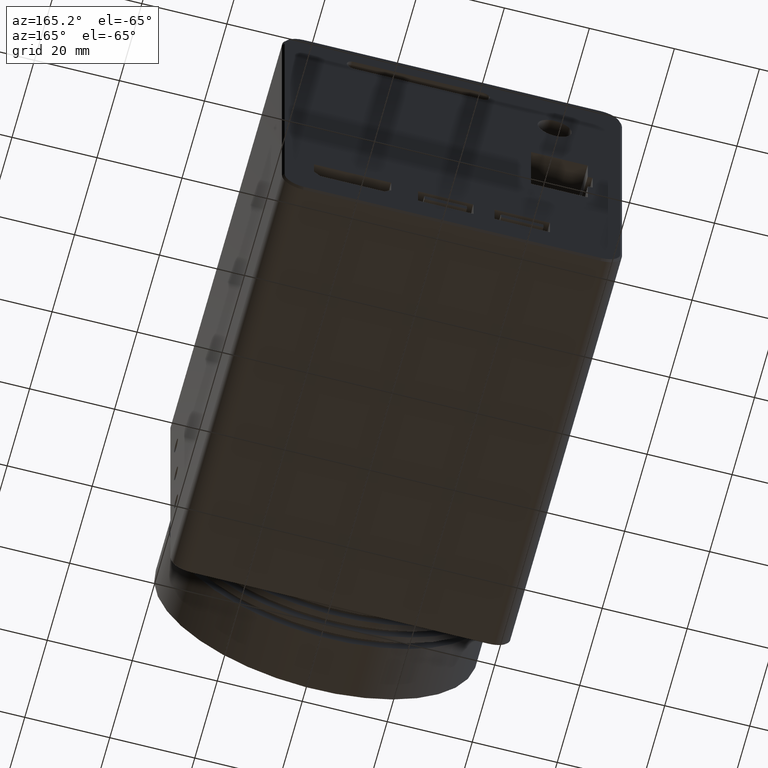
[diagram: clean part render]
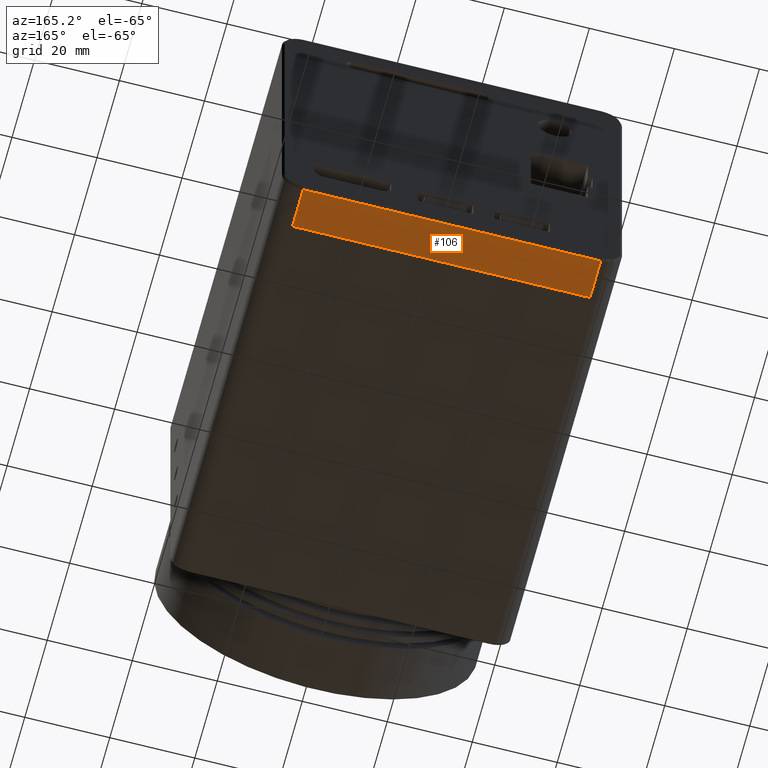
[diagram: same view with one face highlighted and labeled with its STEP entity id]
A machine part, auxiliary view. The second image highlights one B-rep face of the part: STEP entity #106.
In plain terms, the highlighted planar face has unit normal (0, -0, 1).
Its self-contained STEP definition (entity closure, byte-faithful):
#2 = DIRECTION ( 'NONE',  ( 1.000000000000000000, 0.000000000000000000, -0.000000000000000000 ) ) ;
#6 = LINE ( 'NONE', #1852, #449 ) ;
#106 = ADVANCED_FACE ( 'NONE', ( #3049 ), #2106, .F. ) ;
#180 = VERTEX_POINT ( 'NONE', #606 ) ;
#237 = LINE ( 'NONE', #3105, #2905 ) ;
#277 = VECTOR ( 'NONE', #2888, 1000.000000000000000 ) ;
#292 = EDGE_CURVE ( 'NONE', #3232, #180, #857, .T. ) ;
#378 = ORIENTED_EDGE ( 'NONE', *, *, #3316, .F. ) ;
#421 = DIRECTION ( 'NONE',  ( 0.000000000000000000, -0.000000000000000000, 1.000000000000000000 ) ) ;
#449 = VECTOR ( 'NONE', #1350, 1000.000000000000000 ) ;
#576 = CARTESIAN_POINT ( 'NONE',  ( 52.30124153498868367, 53.60462753950339021, -40.00000000000000000 ) ) ;
#606 = CARTESIAN_POINT ( 'NONE',  ( 52.30124153498868367, 63.10462753950338310, -40.00000000000000000 ) ) ;
#857 = LINE ( 'NONE', #1663, #1962 ) ;
#888 = VERTEX_POINT ( 'NONE', #2600 ) ;
#1014 = ORIENTED_EDGE ( 'NONE', *, *, #292, .T. ) ;
#1192 = CARTESIAN_POINT ( 'NONE',  ( 52.30124153498868367, 63.60462753950338310, -40.00000000000000000 ) ) ;
#1226 = LINE ( 'NONE', #2062, #277 ) ;
#1236 = AXIS2_PLACEMENT_3D ( 'NONE', #1192, #421, #2 ) ;
#1323 = EDGE_CURVE ( 'NONE', #1507, #888, #237, .T. ) ;
#1350 = DIRECTION ( 'NONE',  ( -0.000000000000000000, -1.000000000000000000, -0.000000000000000000 ) ) ;
#1507 = VERTEX_POINT ( 'NONE', #576 ) ;
#1663 = CARTESIAN_POINT ( 'NONE',  ( 52.30124153498868367, 63.10462753950338310, -40.00000000000000000 ) ) ;
#1770 = CARTESIAN_POINT ( 'NONE',  ( -17.69875846501125238, 63.10462753950338310, -40.00000000000000000 ) ) ;
#1852 = CARTESIAN_POINT ( 'NONE',  ( 52.30124153498868367, 63.60462753950338310, -40.00000000000000000 ) ) ;
#1962 = VECTOR ( 'NONE', #2118, 1000.000000000000000 ) ;
#2062 = CARTESIAN_POINT ( 'NONE',  ( -17.69875846501125238, 63.60462753950338310, -40.00000000000000000 ) ) ;
#2106 = PLANE ( 'NONE',  #1236 ) ;
#2118 = DIRECTION ( 'NONE',  ( 1.000000000000000000, 0.000000000000000000, 0.000000000000000000 ) ) ;
#2161 = ORIENTED_EDGE ( 'NONE', *, *, #1323, .T. ) ;
#2404 = EDGE_LOOP ( 'NONE', ( #378, #1014, #3196, #2161 ) ) ;
#2600 = CARTESIAN_POINT ( 'NONE',  ( -17.69875846501125238, 53.60462753950339021, -40.00000000000000000 ) ) ;
#2888 = DIRECTION ( 'NONE',  ( -0.000000000000000000, -1.000000000000000000, -0.000000000000000000 ) ) ;
#2905 = VECTOR ( 'NONE', #3138, 1000.000000000000000 ) ;
#3049 = FACE_OUTER_BOUND ( 'NONE', #2404, .T. ) ;
#3105 = CARTESIAN_POINT ( 'NONE',  ( 52.30124153498868367, 53.60462753950339021, -40.00000000000000000 ) ) ;
#3138 = DIRECTION ( 'NONE',  ( -1.000000000000000000, 0.000000000000000000, 0.000000000000000000 ) ) ;
#3196 = ORIENTED_EDGE ( 'NONE', *, *, #3402, .T. ) ;
#3232 = VERTEX_POINT ( 'NONE', #1770 ) ;
#3316 = EDGE_CURVE ( 'NONE', #3232, #888, #1226, .T. ) ;
#3402 = EDGE_CURVE ( 'NONE', #180, #1507, #6, .T. ) ;